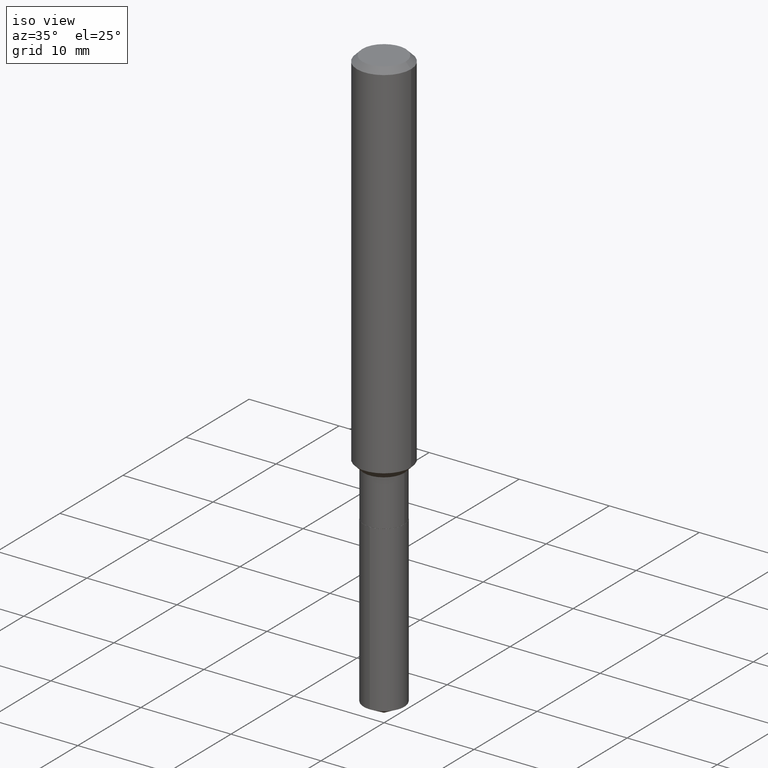
[diagram: clean part render]
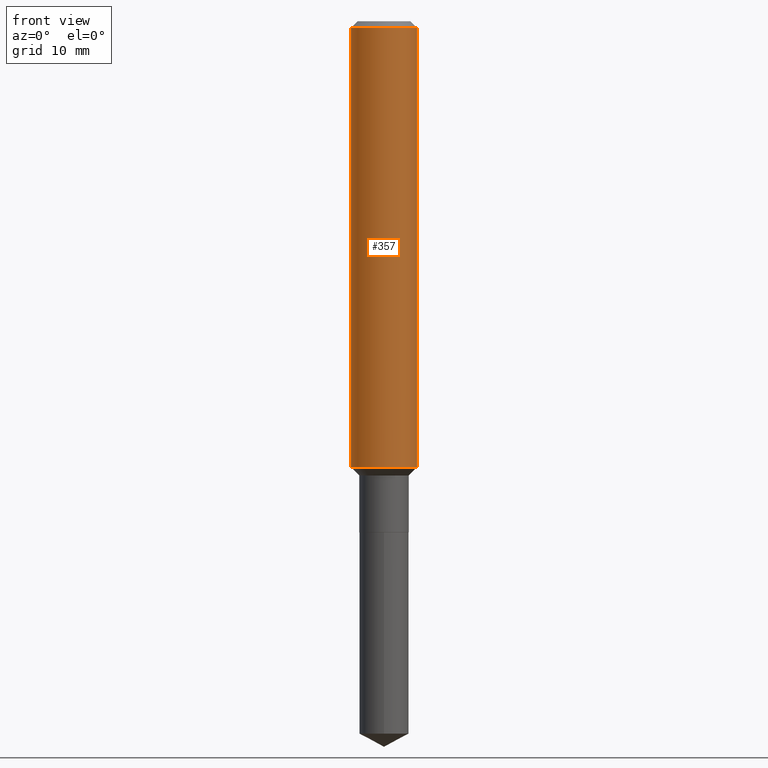
[diagram: tour spotlight — one face highlighted and labeled with its STEP entity id]
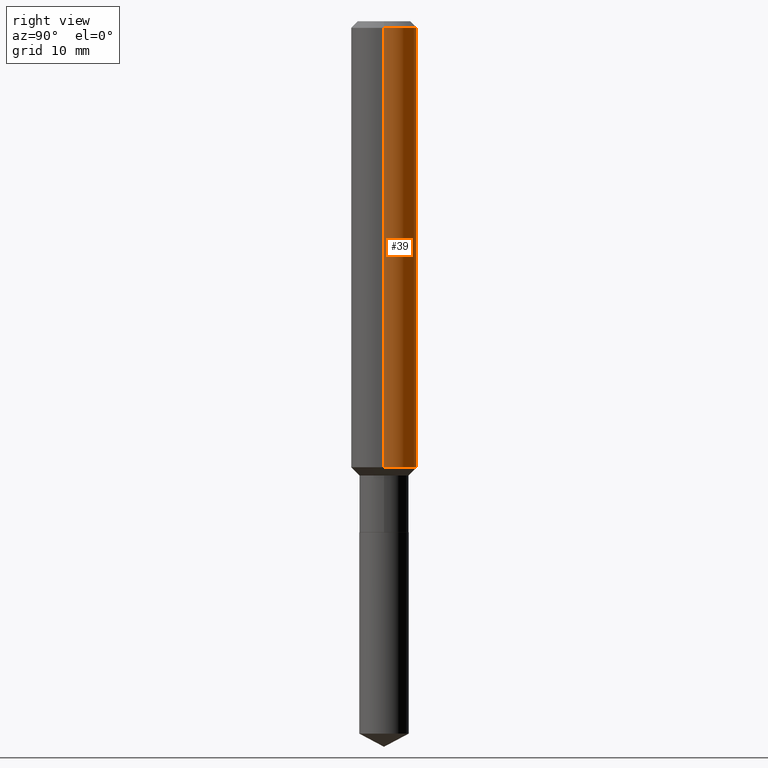
[diagram: tour spotlight — one face highlighted and labeled with its STEP entity id]
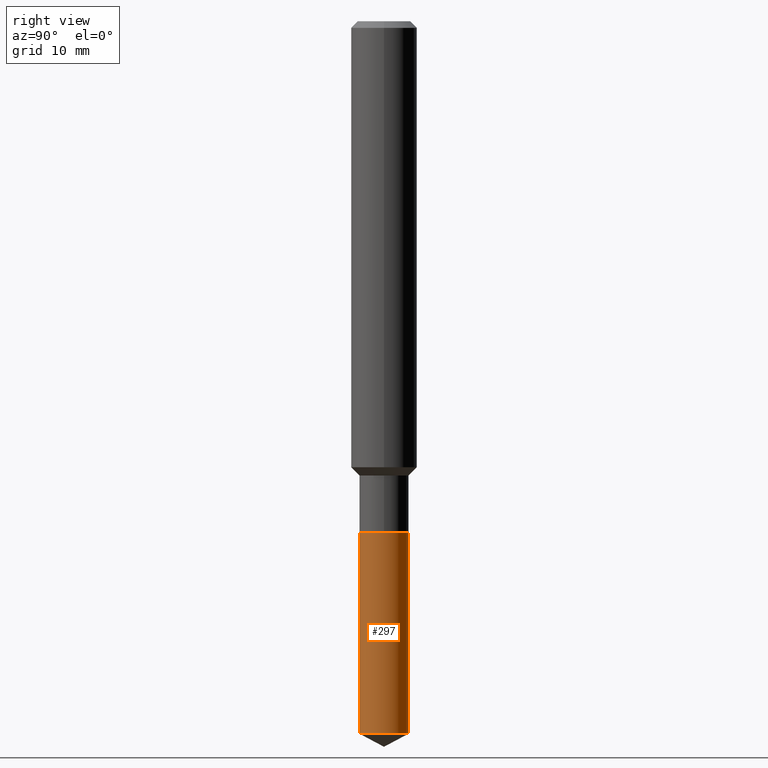
[diagram: tour spotlight — one face highlighted and labeled with its STEP entity id]
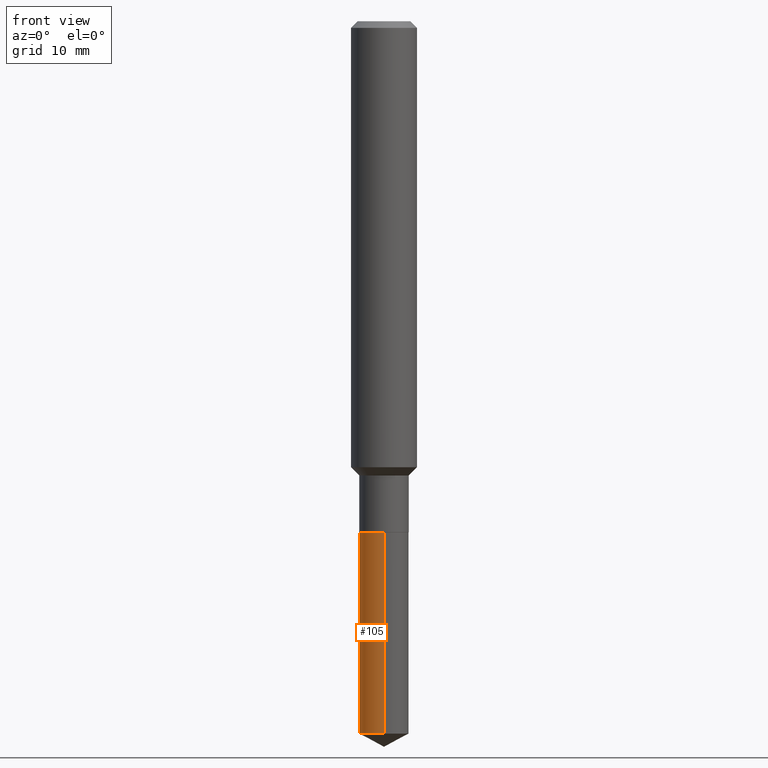
[diagram: tour spotlight — one face highlighted and labeled with its STEP entity id]
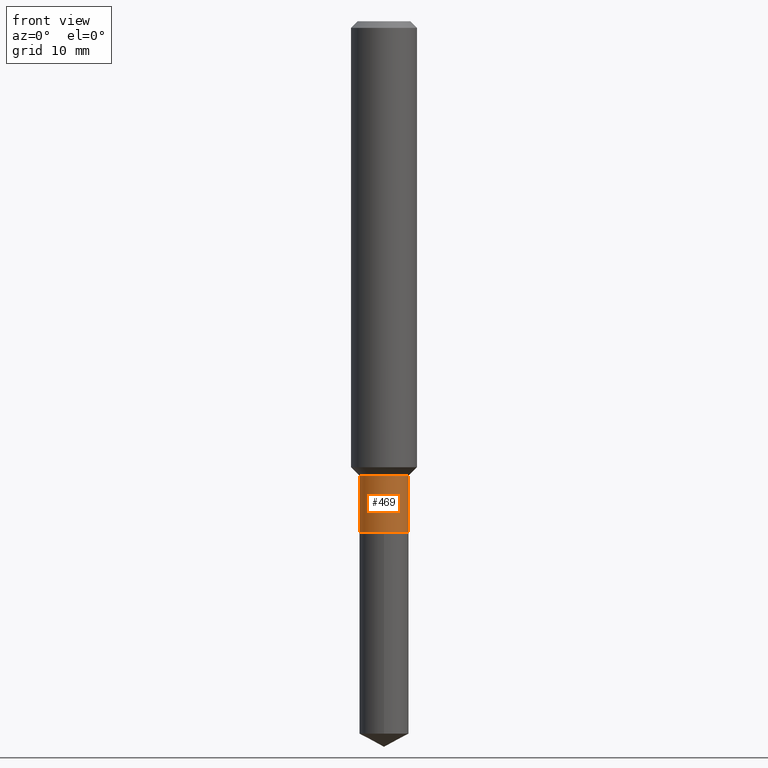
[diagram: tour spotlight — one face highlighted and labeled with its STEP entity id]
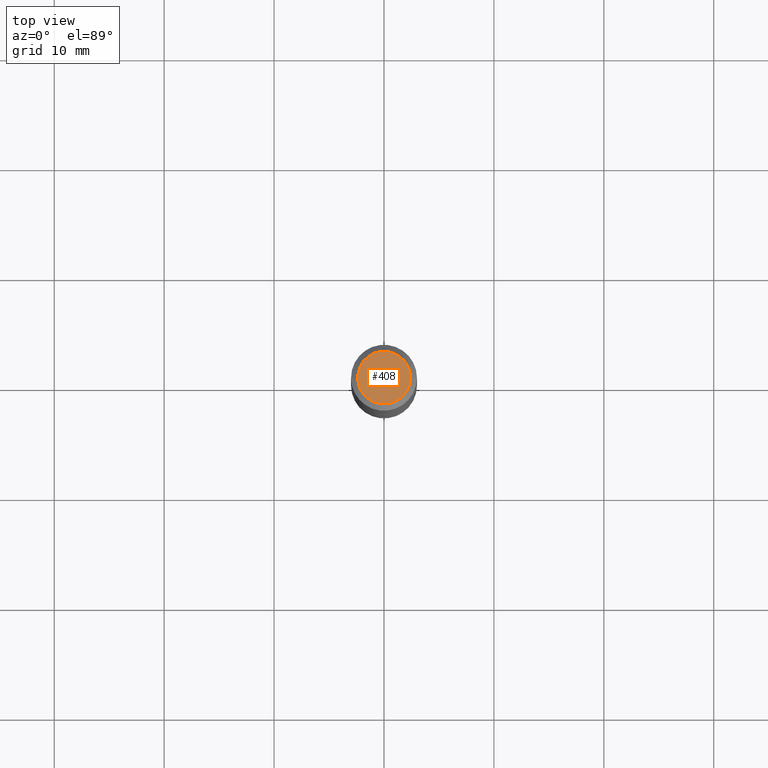
[diagram: tour spotlight — one face highlighted and labeled with its STEP entity id]
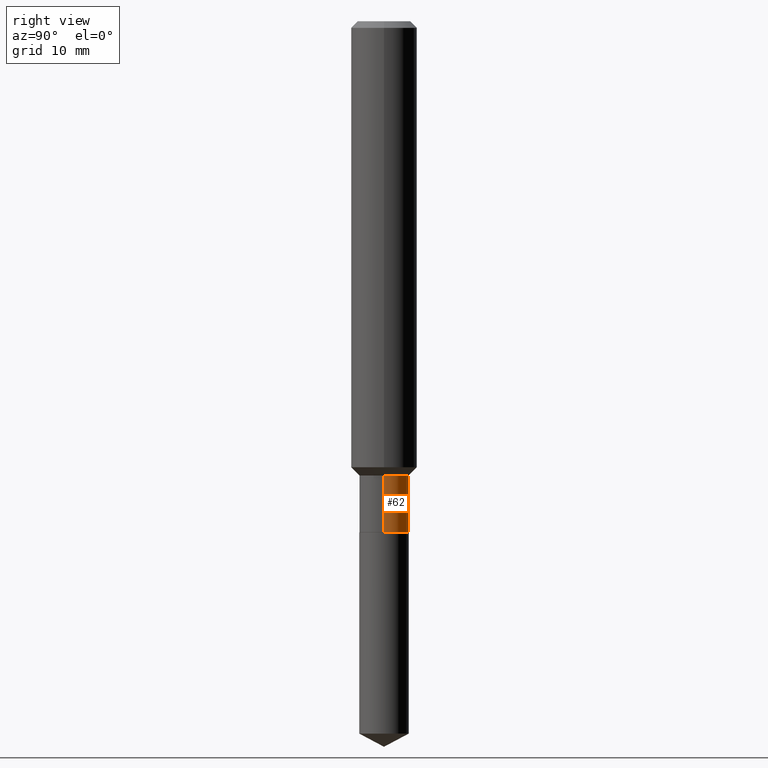
[diagram: tour spotlight — one face highlighted and labeled with its STEP entity id]
A machine part: a face-by-face anatomy tour. The part has 17 B-rep faces; the first image is the clean iso view, then the 7 largest visible faces are spotlighted one at a time (largest first), each with its STEP entity span.

Face 1 — front view, entity #357. In plain terms, the highlighted cylindrical surface (edge-blend (fillet) strip) has radius 2.9997 mm, axis along (-0, 0, 1).
Definition (entity closure, byte-faithful):
#15 = VECTOR ( 'NONE', #265, 39.37007874015748143 ) ;
#20 = CARTESIAN_POINT ( 'NONE',  ( 3.906391871000136996E-29, -5.577292290668039694E-15, -1.597399999999999709 ) ) ;
#49 = EDGE_CURVE ( 'NONE', #227, #115, #176, .T. ) ;
#93 = VECTOR ( 'NONE', #186, 39.37007874015748143 ) ;
#106 = DIRECTION ( 'NONE',  ( -2.445468806185136597E-29, 3.491481338843145583E-15, 1.000000000000000000 ) ) ;
#108 = ORIENTED_EDGE ( 'NONE', *, *, #378, .F. ) ;
#112 = CARTESIAN_POINT ( 'NONE',  ( 0.1181000000000001077, -8.246878922347488542E-16, 5.758764772215005345E-30 ) ) ;
#115 = VERTEX_POINT ( 'NONE', #286 ) ;
#176 = CIRCLE ( 'NONE', #193, 0.1181000000000001909 ) ;
#186 = DIRECTION ( 'NONE',  ( -2.445468806185136877E-29, 3.491481338843145188E-15, 1.000000000000000000 ) ) ;
#190 = CYLINDRICAL_SURFACE ( 'NONE', #477, 0.1181000000000001077 ) ;
#193 = AXIS2_PLACEMENT_3D ( 'NONE', #20, #441, #244 ) ;
#222 = DIRECTION ( 'NONE',  ( -2.445468806185136597E-29, 3.491481338843145583E-15, 1.000000000000000000 ) ) ;
#225 = AXIS2_PLACEMENT_3D ( 'NONE', #418, #222, #341 ) ;
#226 = FACE_OUTER_BOUND ( 'NONE', #272, .T. ) ;
#227 = VERTEX_POINT ( 'NONE', #481 ) ;
#244 = DIRECTION ( 'NONE',  ( 1.000000000000000000, -6.982962677686269077E-15, 0.000000000000000000 ) ) ;
#246 = ORIENTED_EDGE ( 'NONE', *, *, #318, .T. ) ;
#261 = CARTESIAN_POINT ( 'NONE',  ( -0.1180999999999999966, -1.990729569013078195E-15, -0.02362000000000014088 ) ) ;
#265 = DIRECTION ( 'NONE',  ( -2.445468806185136877E-29, 3.491481338843145188E-15, 1.000000000000000000 ) ) ;
#272 = EDGE_LOOP ( 'NONE', ( #108, #274, #246, #279 ) ) ;
#274 = ORIENTED_EDGE ( 'NONE', *, *, #49, .T. ) ;
#279 = ORIENTED_EDGE ( 'NONE', *, *, #288, .F. ) ;
#286 = CARTESIAN_POINT ( 'NONE',  ( 0.1181000000000001909, -6.401980182902789534E-15, -1.597399999999999709 ) ) ;
#288 = EDGE_CURVE ( 'NONE', #392, #319, #352, .T. ) ;
#298 = LINE ( 'NONE', #371, #93 ) ;
#303 = DIRECTION ( 'NONE',  ( 1.000000000000000000, -6.982962677686266711E-15, 4.876176775795935793E-29 ) ) ;
#311 = LINE ( 'NONE', #112, #15 ) ;
#318 = EDGE_CURVE ( 'NONE', #115, #319, #311, .T. ) ;
#319 = VERTEX_POINT ( 'NONE', #419 ) ;
#341 = DIRECTION ( 'NONE',  ( 1.000000000000000000, -6.982962677686266711E-15, 0.000000000000000000 ) ) ;
#352 = CIRCLE ( 'NONE', #225, 0.1180999999999999966 ) ;
#357 = ADVANCED_FACE ( 'NONE', ( #226 ), #190, .T. ) ;
#371 = CARTESIAN_POINT ( 'NONE',  ( -0.1181000000000001077, 8.391509709326790846E-16, -5.809262341591049389E-30 ) ) ;
#378 = EDGE_CURVE ( 'NONE', #227, #392, #298, .T. ) ;
#392 = VERTEX_POINT ( 'NONE', #261 ) ;
#418 = CARTESIAN_POINT ( 'NONE',  ( 5.776197320209327532E-31, -8.246878922347559293E-17, -0.02362000000000014088 ) ) ;
#419 = CARTESIAN_POINT ( 'NONE',  ( 0.1180999999999999966, -9.071566814582237199E-16, -0.02362000000000014088 ) ) ;
#441 = DIRECTION ( 'NONE',  ( -2.445468806185136597E-29, 3.491481338843145583E-15, 1.000000000000000000 ) ) ;
#460 = CARTESIAN_POINT ( 'NONE',  ( 0.000000000000000000, 0.000000000000000000, 0.000000000000000000 ) ) ;
#477 = AXIS2_PLACEMENT_3D ( 'NONE', #460, #106, #303 ) ;
#481 = CARTESIAN_POINT ( 'NONE',  ( -0.1181000000000001909, -4.738141319735360708E-15, -1.597399999999999709 ) ) ;

Face 2 — right view, entity #39. In plain terms, the highlighted cylindrical surface (edge-blend (fillet) strip) has radius 2.9997 mm, axis along (-0, 0, 1).
Definition (entity closure, byte-faithful):
#6 = ORIENTED_EDGE ( 'NONE', *, *, #318, .F. ) ;
#15 = VECTOR ( 'NONE', #265, 39.37007874015748143 ) ;
#35 = DIRECTION ( 'NONE',  ( 1.000000000000000000, -6.982962677686266711E-15, 0.000000000000000000 ) ) ;
#37 = CIRCLE ( 'NONE', #177, 0.1181000000000001909 ) ;
#39 = ADVANCED_FACE ( 'NONE', ( #200 ), #480, .T. ) ;
#66 = DIRECTION ( 'NONE',  ( -2.445468806185136597E-29, 3.491481338843145583E-15, 1.000000000000000000 ) ) ;
#75 = ORIENTED_EDGE ( 'NONE', *, *, #282, .F. ) ;
#93 = VECTOR ( 'NONE', #186, 39.37007874015748143 ) ;
#112 = CARTESIAN_POINT ( 'NONE',  ( 0.1181000000000001077, -8.246878922347488542E-16, 5.758764772215005345E-30 ) ) ;
#115 = VERTEX_POINT ( 'NONE', #286 ) ;
#177 = AXIS2_PLACEMENT_3D ( 'NONE', #223, #381, #336 ) ;
#186 = DIRECTION ( 'NONE',  ( -2.445468806185136877E-29, 3.491481338843145188E-15, 1.000000000000000000 ) ) ;
#200 = FACE_OUTER_BOUND ( 'NONE', #314, .T. ) ;
#223 = CARTESIAN_POINT ( 'NONE',  ( 3.906391871000136996E-29, -5.577292290668039694E-15, -1.597399999999999709 ) ) ;
#227 = VERTEX_POINT ( 'NONE', #481 ) ;
#261 = CARTESIAN_POINT ( 'NONE',  ( -0.1180999999999999966, -1.990729569013078195E-15, -0.02362000000000014088 ) ) ;
#265 = DIRECTION ( 'NONE',  ( -2.445468806185136877E-29, 3.491481338843145188E-15, 1.000000000000000000 ) ) ;
#282 = EDGE_CURVE ( 'NONE', #319, #392, #365, .T. ) ;
#286 = CARTESIAN_POINT ( 'NONE',  ( 0.1181000000000001909, -6.401980182902789534E-15, -1.597399999999999709 ) ) ;
#298 = LINE ( 'NONE', #371, #93 ) ;
#305 = ORIENTED_EDGE ( 'NONE', *, *, #378, .T. ) ;
#311 = LINE ( 'NONE', #112, #15 ) ;
#314 = EDGE_LOOP ( 'NONE', ( #430, #305, #75, #6 ) ) ;
#318 = EDGE_CURVE ( 'NONE', #115, #319, #311, .T. ) ;
#319 = VERTEX_POINT ( 'NONE', #419 ) ;
#325 = CARTESIAN_POINT ( 'NONE',  ( 0.000000000000000000, 0.000000000000000000, 0.000000000000000000 ) ) ;
#336 = DIRECTION ( 'NONE',  ( 1.000000000000000000, -6.982962677686269077E-15, 0.000000000000000000 ) ) ;
#339 = AXIS2_PLACEMENT_3D ( 'NONE', #325, #360, #475 ) ;
#360 = DIRECTION ( 'NONE',  ( -2.445468806185136597E-29, 3.491481338843145583E-15, 1.000000000000000000 ) ) ;
#365 = CIRCLE ( 'NONE', #416, 0.1180999999999999966 ) ;
#371 = CARTESIAN_POINT ( 'NONE',  ( -0.1181000000000001077, 8.391509709326790846E-16, -5.809262341591049389E-30 ) ) ;
#378 = EDGE_CURVE ( 'NONE', #227, #392, #298, .T. ) ;
#381 = DIRECTION ( 'NONE',  ( -2.445468806185136597E-29, 3.491481338843145583E-15, 1.000000000000000000 ) ) ;
#389 = EDGE_CURVE ( 'NONE', #115, #227, #37, .T. ) ;
#392 = VERTEX_POINT ( 'NONE', #261 ) ;
#416 = AXIS2_PLACEMENT_3D ( 'NONE', #417, #66, #35 ) ;
#417 = CARTESIAN_POINT ( 'NONE',  ( 5.776197320209327532E-31, -8.246878922347559293E-17, -0.02362000000000014088 ) ) ;
#419 = CARTESIAN_POINT ( 'NONE',  ( 0.1180999999999999966, -9.071566814582237199E-16, -0.02362000000000014088 ) ) ;
#430 = ORIENTED_EDGE ( 'NONE', *, *, #389, .T. ) ;
#475 = DIRECTION ( 'NONE',  ( 1.000000000000000000, -6.982962677686266711E-15, 4.876176775795935793E-29 ) ) ;
#480 = CYLINDRICAL_SURFACE ( 'NONE', #339, 0.1181000000000001077 ) ;
#481 = CARTESIAN_POINT ( 'NONE',  ( -0.1181000000000001909, -4.738141319735360708E-15, -1.597399999999999709 ) ) ;

Face 3 — right view, entity #297. In plain terms, the highlighted cylindrical surface (edge-blend (fillet) strip) has radius 2.2504 mm, axis along (-0, 0, 1).
Definition (entity closure, byte-faithful):
#2 = DIRECTION ( 'NONE',  ( -2.445542298760082388E-29, 3.491376093292885535E-15, 1.000000000000000000 ) ) ;
#14 = CARTESIAN_POINT ( 'NONE',  ( 6.295408638835111705E-16, 0.08859999999999110254, -2.551290544354793521 ) ) ;
#61 = LINE ( 'NONE', #451, #165 ) ;
#70 = AXIS2_PLACEMENT_3D ( 'NONE', #96, #255, #335 ) ;
#72 = CARTESIAN_POINT ( 'NONE',  ( 4.476919743483128975E-29, -6.391854887020145602E-15, -1.830699999999999772 ) ) ;
#74 = ORIENTED_EDGE ( 'NONE', *, *, #276, .T. ) ;
#96 = CARTESIAN_POINT ( 'NONE',  ( 6.239154399789330542E-29, -8.907707486633376146E-15, -2.551290544354793077 ) ) ;
#124 = CARTESIAN_POINT ( 'NONE',  ( 6.295408638835111705E-16, 0.08859999999999361442, -1.830699999999999994 ) ) ;
#140 = AXIS2_PLACEMENT_3D ( 'NONE', #72, #2, #458 ) ;
#154 = VERTEX_POINT ( 'NONE', #455 ) ;
#163 = EDGE_CURVE ( 'NONE', #154, #347, #61, .T. ) ;
#165 = VECTOR ( 'NONE', #327, 39.37007874015748143 ) ;
#173 = CARTESIAN_POINT ( 'NONE',  ( 6.295408638834934212E-16, 0.08859999999999361442, -1.830699999999999994 ) ) ;
#187 = CYLINDRICAL_SURFACE ( 'NONE', #140, 0.08859999999999999820 ) ;
#204 = EDGE_CURVE ( 'NONE', #467, #466, #257, .T. ) ;
#232 = ORIENTED_EDGE ( 'NONE', *, *, #474, .F. ) ;
#241 = CIRCLE ( 'NONE', #269, 0.08859999999999999820 ) ;
#243 = DIRECTION ( 'NONE',  ( -2.445542298760082388E-29, 3.491376093292885535E-15, 1.000000000000000000 ) ) ;
#255 = DIRECTION ( 'NONE',  ( -2.445542298760082388E-29, 3.491376093292885535E-15, 1.000000000000000000 ) ) ;
#257 = LINE ( 'NONE', #173, #358 ) ;
#269 = AXIS2_PLACEMENT_3D ( 'NONE', #404, #243, #473 ) ;
#276 = EDGE_CURVE ( 'NONE', #154, #467, #445, .T. ) ;
#280 = ORIENTED_EDGE ( 'NONE', *, *, #163, .F. ) ;
#297 = ADVANCED_FACE ( 'NONE', ( #348 ), #187, .T. ) ;
#327 = DIRECTION ( 'NONE',  ( -2.445542298760082668E-29, 3.491376093292885535E-15, 1.000000000000000000 ) ) ;
#335 = DIRECTION ( 'NONE',  ( -6.982962677686265133E-15, -1.000000000000000000, 6.166699759964476650E-15 ) ) ;
#338 = EDGE_LOOP ( 'NONE', ( #74, #390, #232, #280 ) ) ;
#347 = VERTEX_POINT ( 'NONE', #424 ) ;
#348 = FACE_OUTER_BOUND ( 'NONE', #338, .T. ) ;
#358 = VECTOR ( 'NONE', #407, 39.37007874015748143 ) ;
#390 = ORIENTED_EDGE ( 'NONE', *, *, #204, .T. ) ;
#404 = CARTESIAN_POINT ( 'NONE',  ( 4.476919743483128975E-29, -6.391854887020145602E-15, -1.830699999999999772 ) ) ;
#407 = DIRECTION ( 'NONE',  ( -2.445542298760082668E-29, 3.491376093292885535E-15, 1.000000000000000000 ) ) ;
#424 = CARTESIAN_POINT ( 'NONE',  ( -6.186904932429582836E-16, -0.08860000000000638198, -1.830699999999999328 ) ) ;
#445 = CIRCLE ( 'NONE', #70, 0.08859999999999999820 ) ;
#451 = CARTESIAN_POINT ( 'NONE',  ( -6.186904932429582836E-16, -0.08860000000000638198, -1.830699999999999328 ) ) ;
#455 = CARTESIAN_POINT ( 'NONE',  ( -6.186904932429410273E-16, -0.08860000000000893550, -2.551290544354792633 ) ) ;
#458 = DIRECTION ( 'NONE',  ( -6.982962677686265133E-15, -1.000000000000000000, 3.083349879982238325E-15 ) ) ;
#466 = VERTEX_POINT ( 'NONE', #124 ) ;
#467 = VERTEX_POINT ( 'NONE', #14 ) ;
#473 = DIRECTION ( 'NONE',  ( -6.982962677686265133E-15, -1.000000000000000000, 3.083349879982238325E-15 ) ) ;
#474 = EDGE_CURVE ( 'NONE', #347, #466, #241, .T. ) ;

Face 4 — front view, entity #105. In plain terms, the highlighted cylindrical surface (edge-blend (fillet) strip) has radius 2.2504 mm, axis along (-0, 0, 1).
Definition (entity closure, byte-faithful):
#9 = ORIENTED_EDGE ( 'NONE', *, *, #26, .T. ) ;
#14 = CARTESIAN_POINT ( 'NONE',  ( 6.295408638835111705E-16, 0.08859999999999110254, -2.551290544354793521 ) ) ;
#21 = AXIS2_PLACEMENT_3D ( 'NONE', #362, #164, #478 ) ;
#26 = EDGE_CURVE ( 'NONE', #467, #154, #45, .T. ) ;
#33 = EDGE_CURVE ( 'NONE', #466, #347, #54, .T. ) ;
#45 = CIRCLE ( 'NONE', #209, 0.08859999999999999820 ) ;
#48 = DIRECTION ( 'NONE',  ( -6.982962677686265133E-15, -1.000000000000000000, 6.166699759964476650E-15 ) ) ;
#53 = DIRECTION ( 'NONE',  ( -2.445542298760082388E-29, 3.491376093292885535E-15, 1.000000000000000000 ) ) ;
#54 = CIRCLE ( 'NONE', #277, 0.08859999999999999820 ) ;
#57 = CARTESIAN_POINT ( 'NONE',  ( 6.239154399789330542E-29, -8.907707486633376146E-15, -2.551290544354793077 ) ) ;
#61 = LINE ( 'NONE', #451, #165 ) ;
#82 = CARTESIAN_POINT ( 'NONE',  ( 4.476919743483128975E-29, -6.391854887020145602E-15, -1.830699999999999772 ) ) ;
#91 = DIRECTION ( 'NONE',  ( -2.445542298760082388E-29, 3.491376093292885535E-15, 1.000000000000000000 ) ) ;
#105 = ADVANCED_FACE ( 'NONE', ( #321 ), #437, .T. ) ;
#124 = CARTESIAN_POINT ( 'NONE',  ( 6.295408638835111705E-16, 0.08859999999999361442, -1.830699999999999994 ) ) ;
#154 = VERTEX_POINT ( 'NONE', #455 ) ;
#163 = EDGE_CURVE ( 'NONE', #154, #347, #61, .T. ) ;
#164 = DIRECTION ( 'NONE',  ( -2.445542298760082388E-29, 3.491376093292885535E-15, 1.000000000000000000 ) ) ;
#165 = VECTOR ( 'NONE', #327, 39.37007874015748143 ) ;
#173 = CARTESIAN_POINT ( 'NONE',  ( 6.295408638834934212E-16, 0.08859999999999361442, -1.830699999999999994 ) ) ;
#188 = ORIENTED_EDGE ( 'NONE', *, *, #33, .F. ) ;
#192 = ORIENTED_EDGE ( 'NONE', *, *, #204, .F. ) ;
#204 = EDGE_CURVE ( 'NONE', #467, #466, #257, .T. ) ;
#209 = AXIS2_PLACEMENT_3D ( 'NONE', #57, #91, #48 ) ;
#257 = LINE ( 'NONE', #173, #358 ) ;
#277 = AXIS2_PLACEMENT_3D ( 'NONE', #82, #53, #440 ) ;
#321 = FACE_OUTER_BOUND ( 'NONE', #394, .T. ) ;
#327 = DIRECTION ( 'NONE',  ( -2.445542298760082668E-29, 3.491376093292885535E-15, 1.000000000000000000 ) ) ;
#347 = VERTEX_POINT ( 'NONE', #424 ) ;
#358 = VECTOR ( 'NONE', #407, 39.37007874015748143 ) ;
#362 = CARTESIAN_POINT ( 'NONE',  ( 4.476919743483128975E-29, -6.391854887020145602E-15, -1.830699999999999772 ) ) ;
#394 = EDGE_LOOP ( 'NONE', ( #192, #9, #465, #188 ) ) ;
#407 = DIRECTION ( 'NONE',  ( -2.445542298760082668E-29, 3.491376093292885535E-15, 1.000000000000000000 ) ) ;
#424 = CARTESIAN_POINT ( 'NONE',  ( -6.186904932429582836E-16, -0.08860000000000638198, -1.830699999999999328 ) ) ;
#437 = CYLINDRICAL_SURFACE ( 'NONE', #21, 0.08859999999999999820 ) ;
#440 = DIRECTION ( 'NONE',  ( -6.982962677686265133E-15, -1.000000000000000000, 3.083349879982238325E-15 ) ) ;
#451 = CARTESIAN_POINT ( 'NONE',  ( -6.186904932429582836E-16, -0.08860000000000638198, -1.830699999999999328 ) ) ;
#455 = CARTESIAN_POINT ( 'NONE',  ( -6.186904932429410273E-16, -0.08860000000000893550, -2.551290544354792633 ) ) ;
#465 = ORIENTED_EDGE ( 'NONE', *, *, #163, .T. ) ;
#466 = VERTEX_POINT ( 'NONE', #124 ) ;
#467 = VERTEX_POINT ( 'NONE', #14 ) ;
#478 = DIRECTION ( 'NONE',  ( -6.982962677686265133E-15, -1.000000000000000000, 3.083349879982238325E-15 ) ) ;

Face 5 — front view, entity #469. In plain terms, the highlighted cylindrical surface (edge-blend (fillet) strip) has radius 2.2504 mm, axis along (-0, 0, 1).
Definition (entity closure, byte-faithful):
#11 = ORIENTED_EDGE ( 'NONE', *, *, #212, .F. ) ;
#13 = VERTEX_POINT ( 'NONE', #203 ) ;
#25 = DIRECTION ( 'NONE',  ( -2.445468806185136597E-29, 3.491481338843145583E-15, 1.000000000000000000 ) ) ;
#42 = CARTESIAN_POINT ( 'NONE',  ( -0.08859999999999998432, -5.405659204373870556E-15, -1.626899999999999791 ) ) ;
#67 = CARTESIAN_POINT ( 'NONE',  ( 4.475697009080036734E-29, -6.390109146350724099E-15, -1.830199999999999827 ) ) ;
#69 = CIRCLE ( 'NONE', #126, 0.08859999999999998432 ) ;
#78 = VECTOR ( 'NONE', #452, 39.37007874015748143 ) ;
#80 = EDGE_CURVE ( 'NONE', #350, #428, #69, .T. ) ;
#87 = FACE_OUTER_BOUND ( 'NONE', #283, .T. ) ;
#101 = CIRCLE ( 'NONE', #157, 0.08859999999999999820 ) ;
#109 = DIRECTION ( 'NONE',  ( -2.445468806185136877E-29, 3.491481338843145188E-15, 1.000000000000000000 ) ) ;
#122 = ORIENTED_EDGE ( 'NONE', *, *, #80, .F. ) ;
#126 = AXIS2_PLACEMENT_3D ( 'NONE', #208, #25, #170 ) ;
#130 = ORIENTED_EDGE ( 'NONE', *, *, #326, .T. ) ;
#137 = ORIENTED_EDGE ( 'NONE', *, *, #242, .T. ) ;
#139 = CARTESIAN_POINT ( 'NONE',  ( 0.08859999999999999820, -7.008799639593727840E-15, -1.830199999999999827 ) ) ;
#145 = CARTESIAN_POINT ( 'NONE',  ( 0.08859999999999998432, -6.186904932430030515E-16, 4.320292623355198064E-30 ) ) ;
#156 = VERTEX_POINT ( 'NONE', #139 ) ;
#157 = AXIS2_PLACEMENT_3D ( 'NONE', #67, #213, #448 ) ;
#159 = CYLINDRICAL_SURFACE ( 'NONE', #183, 0.08859999999999998432 ) ;
#170 = DIRECTION ( 'NONE',  ( 1.000000000000000000, -6.982962677686270655E-15, 0.000000000000000000 ) ) ;
#183 = AXIS2_PLACEMENT_3D ( 'NONE', #322, #239, #281 ) ;
#184 = LINE ( 'NONE', #145, #436 ) ;
#203 = CARTESIAN_POINT ( 'NONE',  ( -0.08859999999999999820, -5.405659204373870556E-15, -1.830199999999999827 ) ) ;
#208 = CARTESIAN_POINT ( 'NONE',  ( 3.978533200782598270E-29, -5.680290990163912349E-15, -1.626899999999999791 ) ) ;
#212 = EDGE_CURVE ( 'NONE', #13, #350, #299, .T. ) ;
#213 = DIRECTION ( 'NONE',  ( -2.445468806185136597E-29, 3.491481338843145583E-15, 1.000000000000000000 ) ) ;
#239 = DIRECTION ( 'NONE',  ( -2.445468806185136597E-29, 3.491481338843145583E-15, 1.000000000000000000 ) ) ;
#242 = EDGE_CURVE ( 'NONE', #13, #156, #101, .T. ) ;
#263 = CARTESIAN_POINT ( 'NONE',  ( 0.08859999999999998432, -6.298981483406916090E-15, -1.626899999999999791 ) ) ;
#281 = DIRECTION ( 'NONE',  ( 1.000000000000000000, -6.982962677686265922E-15, 4.876176775795935232E-29 ) ) ;
#283 = EDGE_LOOP ( 'NONE', ( #11, #137, #130, #122 ) ) ;
#299 = LINE ( 'NONE', #377, #78 ) ;
#322 = CARTESIAN_POINT ( 'NONE',  ( 0.000000000000000000, 0.000000000000000000, 0.000000000000000000 ) ) ;
#326 = EDGE_CURVE ( 'NONE', #156, #428, #184, .T. ) ;
#350 = VERTEX_POINT ( 'NONE', #42 ) ;
#377 = CARTESIAN_POINT ( 'NONE',  ( -0.08859999999999998432, 6.295408638834486533E-16, -4.358176489965845566E-30 ) ) ;
#428 = VERTEX_POINT ( 'NONE', #263 ) ;
#436 = VECTOR ( 'NONE', #109, 39.37007874015748143 ) ;
#448 = DIRECTION ( 'NONE',  ( 1.000000000000000000, -6.982962677686269077E-15, 0.000000000000000000 ) ) ;
#452 = DIRECTION ( 'NONE',  ( -2.445468806185136877E-29, 3.491481338843145188E-15, 1.000000000000000000 ) ) ;
#469 = ADVANCED_FACE ( 'NONE', ( #87 ), #159, .T. ) ;

Face 6 — top view, entity #408. In plain terms, the highlighted planar face has unit normal (0, -0, -1).
Definition (entity closure, byte-faithful):
#32 = DIRECTION ( 'NONE',  ( 1.000000000000000000, -6.982962677686267499E-15, 4.875432709231658792E-29 ) ) ;
#38 = VERTEX_POINT ( 'NONE', #395 ) ;
#40 = DIRECTION ( 'NONE',  ( -2.445468806185136597E-29, 3.491481338843145583E-15, 1.000000000000000000 ) ) ;
#52 = DIRECTION ( 'NONE',  ( 1.000000000000000000, -6.982962677686267499E-15, 4.875432709231658792E-29 ) ) ;
#56 = EDGE_CURVE ( 'NONE', #38, #231, #155, .T. ) ;
#60 = DIRECTION ( 'NONE',  ( 2.438088387897960049E-29, -3.491481338843145188E-15, -1.000000000000000000 ) ) ;
#71 = ORIENTED_EDGE ( 'NONE', *, *, #369, .T. ) ;
#117 = AXIS2_PLACEMENT_3D ( 'NONE', #125, #284, #52 ) ;
#125 = CARTESIAN_POINT ( 'NONE',  ( 6.603013411620882309E-46, -9.427353171913646324E-32, -2.700101262760083747E-17 ) ) ;
#155 = CIRCLE ( 'NONE', #117, 0.09447999999999998066 ) ;
#178 = CARTESIAN_POINT ( 'NONE',  ( -0.09447999999999998066, 7.009847083995354710E-16, -2.700101262760559836E-17 ) ) ;
#219 = PLANE ( 'NONE',  #278 ) ;
#231 = VERTEX_POINT ( 'NONE', #178 ) ;
#260 = AXIS2_PLACEMENT_3D ( 'NONE', #382, #40, #32 ) ;
#278 = AXIS2_PLACEMENT_3D ( 'NONE', #300, #60, #292 ) ;
#284 = DIRECTION ( 'NONE',  ( -2.445468806185136597E-29, 3.491481338843145583E-15, 1.000000000000000000 ) ) ;
#292 = DIRECTION ( 'NONE',  ( -1.000000000000000000, 6.982962677686265922E-15, -4.876176775795935793E-29 ) ) ;
#300 = CARTESIAN_POINT ( 'NONE',  ( 3.301506705810441154E-46, -4.713676585956823162E-32, -1.350050631380041873E-17 ) ) ;
#308 = ORIENTED_EDGE ( 'NONE', *, *, #56, .T. ) ;
#344 = FACE_OUTER_BOUND ( 'NONE', #410, .T. ) ;
#369 = EDGE_CURVE ( 'NONE', #231, #38, #483, .T. ) ;
#382 = CARTESIAN_POINT ( 'NONE',  ( 6.603013411620882309E-46, -9.427353171913646324E-32, -2.700101262760083747E-17 ) ) ;
#395 = CARTESIAN_POINT ( 'NONE',  ( 0.09447999999999998066, -7.704367267948738690E-16, -2.700101262759583929E-17 ) ) ;
#408 = ADVANCED_FACE ( 'NONE', ( #344 ), #219, .F. ) ;
#410 = EDGE_LOOP ( 'NONE', ( #71, #308 ) ) ;
#483 = CIRCLE ( 'NONE', #260, 0.09447999999999998066 ) ;

Face 7 — right view, entity #62. In plain terms, the highlighted cylindrical surface (edge-blend (fillet) strip) has radius 2.2504 mm, axis along (-0, 0, 1).
Definition (entity closure, byte-faithful):
#13 = VERTEX_POINT ( 'NONE', #203 ) ;
#24 = CARTESIAN_POINT ( 'NONE',  ( 3.978533200782598270E-29, -5.680290990163912349E-15, -1.626899999999999791 ) ) ;
#34 = CARTESIAN_POINT ( 'NONE',  ( 4.475697009080036734E-29, -6.390109146350724099E-15, -1.830199999999999827 ) ) ;
#42 = CARTESIAN_POINT ( 'NONE',  ( -0.08859999999999998432, -5.405659204373870556E-15, -1.626899999999999791 ) ) ;
#51 = DIRECTION ( 'NONE',  ( 1.000000000000000000, -6.982962677686265922E-15, 4.876176775795935232E-29 ) ) ;
#62 = ADVANCED_FACE ( 'NONE', ( #247 ), #364, .T. ) ;
#78 = VECTOR ( 'NONE', #452, 39.37007874015748143 ) ;
#109 = DIRECTION ( 'NONE',  ( -2.445468806185136877E-29, 3.491481338843145188E-15, 1.000000000000000000 ) ) ;
#139 = CARTESIAN_POINT ( 'NONE',  ( 0.08859999999999999820, -7.008799639593727840E-15, -1.830199999999999827 ) ) ;
#145 = CARTESIAN_POINT ( 'NONE',  ( 0.08859999999999998432, -6.186904932430030515E-16, 4.320292623355198064E-30 ) ) ;
#156 = VERTEX_POINT ( 'NONE', #139 ) ;
#158 = EDGE_CURVE ( 'NONE', #156, #13, #435, .T. ) ;
#167 = AXIS2_PLACEMENT_3D ( 'NONE', #24, #169, #245 ) ;
#169 = DIRECTION ( 'NONE',  ( -2.445468806185136597E-29, 3.491481338843145583E-15, 1.000000000000000000 ) ) ;
#184 = LINE ( 'NONE', #145, #436 ) ;
#203 = CARTESIAN_POINT ( 'NONE',  ( -0.08859999999999999820, -5.405659204373870556E-15, -1.830199999999999827 ) ) ;
#211 = DIRECTION ( 'NONE',  ( -2.445468806185136597E-29, 3.491481338843145583E-15, 1.000000000000000000 ) ) ;
#212 = EDGE_CURVE ( 'NONE', #13, #350, #299, .T. ) ;
#245 = DIRECTION ( 'NONE',  ( 1.000000000000000000, -6.982962677686270655E-15, 0.000000000000000000 ) ) ;
#247 = FACE_OUTER_BOUND ( 'NONE', #267, .T. ) ;
#263 = CARTESIAN_POINT ( 'NONE',  ( 0.08859999999999998432, -6.298981483406916090E-15, -1.626899999999999791 ) ) ;
#264 = DIRECTION ( 'NONE',  ( -2.445468806185136597E-29, 3.491481338843145583E-15, 1.000000000000000000 ) ) ;
#267 = EDGE_LOOP ( 'NONE', ( #388, #421, #313, #368 ) ) ;
#290 = AXIS2_PLACEMENT_3D ( 'NONE', #399, #211, #51 ) ;
#299 = LINE ( 'NONE', #377, #78 ) ;
#313 = ORIENTED_EDGE ( 'NONE', *, *, #453, .F. ) ;
#326 = EDGE_CURVE ( 'NONE', #156, #428, #184, .T. ) ;
#330 = AXIS2_PLACEMENT_3D ( 'NONE', #34, #264, #488 ) ;
#350 = VERTEX_POINT ( 'NONE', #42 ) ;
#364 = CYLINDRICAL_SURFACE ( 'NONE', #290, 0.08859999999999998432 ) ;
#368 = ORIENTED_EDGE ( 'NONE', *, *, #326, .F. ) ;
#377 = CARTESIAN_POINT ( 'NONE',  ( -0.08859999999999998432, 6.295408638834486533E-16, -4.358176489965845566E-30 ) ) ;
#388 = ORIENTED_EDGE ( 'NONE', *, *, #158, .T. ) ;
#391 = CIRCLE ( 'NONE', #167, 0.08859999999999998432 ) ;
#399 = CARTESIAN_POINT ( 'NONE',  ( 0.000000000000000000, 0.000000000000000000, 0.000000000000000000 ) ) ;
#421 = ORIENTED_EDGE ( 'NONE', *, *, #212, .T. ) ;
#428 = VERTEX_POINT ( 'NONE', #263 ) ;
#435 = CIRCLE ( 'NONE', #330, 0.08859999999999999820 ) ;
#436 = VECTOR ( 'NONE', #109, 39.37007874015748143 ) ;
#452 = DIRECTION ( 'NONE',  ( -2.445468806185136877E-29, 3.491481338843145188E-15, 1.000000000000000000 ) ) ;
#453 = EDGE_CURVE ( 'NONE', #428, #350, #391, .T. ) ;
#488 = DIRECTION ( 'NONE',  ( 1.000000000000000000, -6.982962677686269077E-15, 0.000000000000000000 ) ) ;